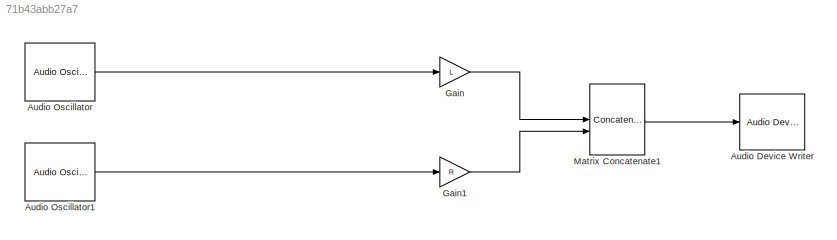
MODEL slx_71b43abb27a7
KIND model
CONFIG AbsTol = auto
CONFIG EnableMultiTasking = off
CONFIG FixedStep = auto
CONFIG MaxStep = auto
CONFIG MinStep = auto
CONFIG RelTol = 1e-3
CONFIG SampleTimeConstraint = Unconstrained
CONFIG SolverName = FixedStepDiscrete
CONFIG StartTime = 0.0
CONFIG StopTime = inf
WORKSPACE source: mxarray member
WORKSPACE L = 5
WORKSPACE R = 0.5
WORKSPACE p = 2
BLOCK [Reference] Audio Device Writer  REF=dspsnks4/Audio Device
Writer
  SourceBlock = dspsnks4/Audio Device\nWriter
  SourceType = Audio Device Writer
BLOCK [Reference] Audio Oscillator  REF=audiosources/Audio Oscillator
  SourceBlock = audiosources/Audio Oscillator
  SourceType = audio.simulink.AudioOscillator
BLOCK [Reference] Audio Oscillator1  REF=audiosources/Audio Oscillator
  SourceBlock = audiosources/Audio Oscillator
  SourceType = audio.simulink.AudioOscillator
BLOCK [Gain] Gain
  Gain = L
BLOCK [Gain] Gain1
  Gain = R
BLOCK [Concatenate] Matrix Concatenate1
  ConcatenateDimension = 2
  Mode = Multidimensional array
LINE Audio Oscillator1:1 -> Gain1:1
LINE Audio Oscillator:1 -> Gain:1
LINE Gain1:1 -> Matrix Concatenate1:2
LINE Gain:1 -> Matrix Concatenate1:1
LINE Matrix Concatenate1:1 -> Audio Device Writer:1
